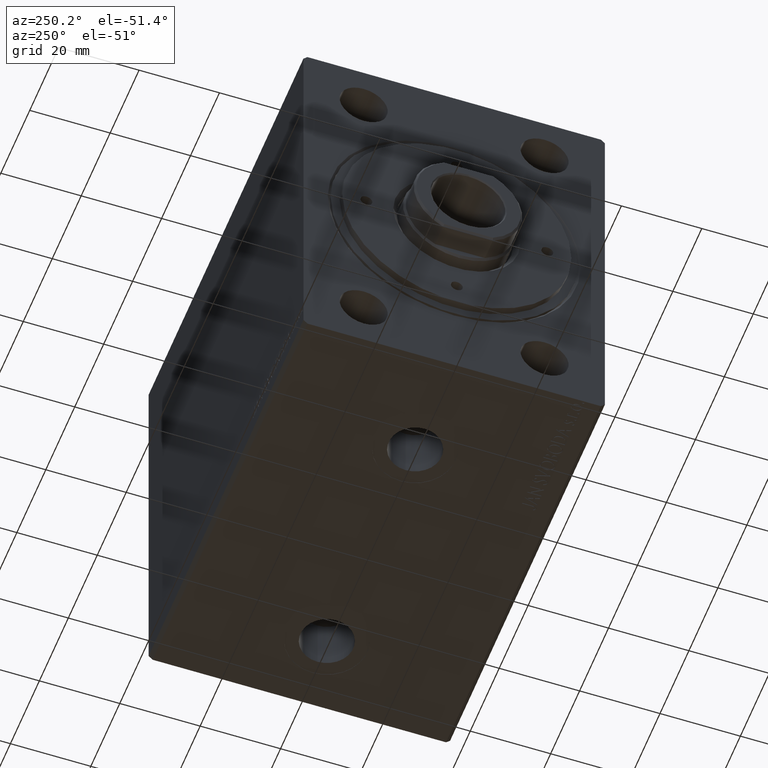
[diagram: clean part render]
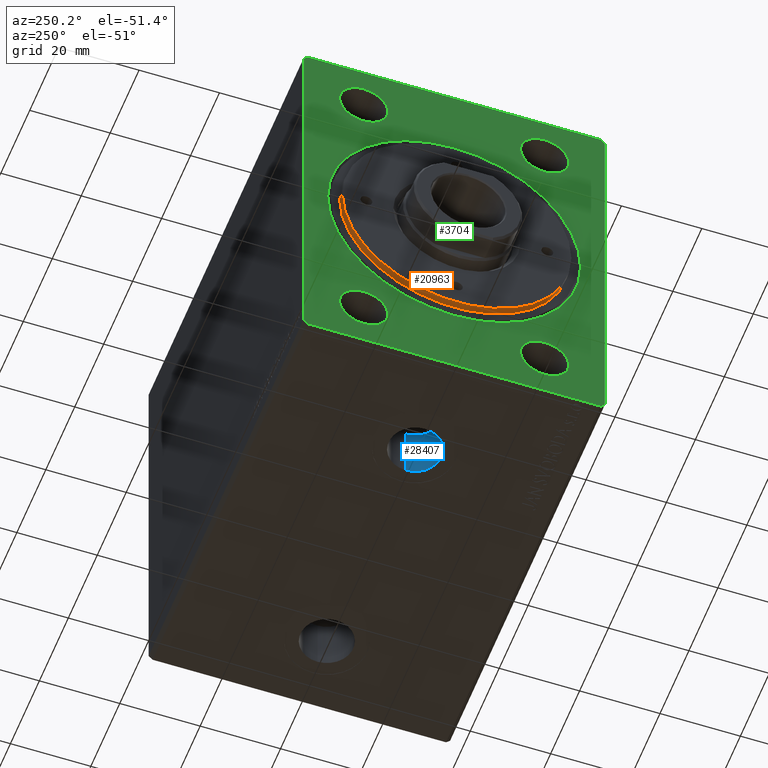
[diagram: same view with three faces highlighted in distinct colors, each labeled with its STEP entity id]
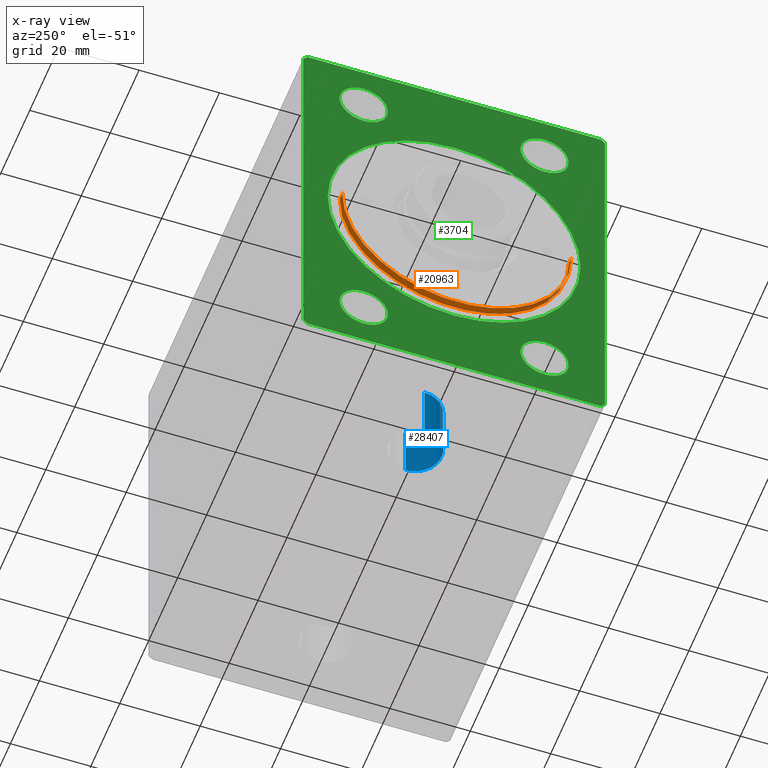
[diagram: x-ray of the same camera — body ghosted, the three highlighted faces saturated]
A machine part, auxiliary view with three faces highlighted in distinct colors.
The next image is the same camera in x-ray (body ghosted, the three faces saturated) — at least one of them is partly hidden behind the body in this view.
Their STEP definitions:

[orange] entity #20963 — the highlighted cylindrical surface (partial cylindrical patch) has radius 28.5 mm, axis along (1, -0, 0).
#275 = CARTESIAN_POINT ( 'NONE',  ( 0.000000000000000000, 0.000000000000000000, 9.999999999999998224 ) ) ;
#403 = CARTESIAN_POINT ( 'NONE',  ( 28.50000000000000000, 3.490243377569956456E-15, 9.999999999999998224 ) ) ;
#490 = DIRECTION ( 'NONE',  ( 0.000000000000000000, 0.000000000000000000, 1.000000000000000000 ) ) ;
#707 = DIRECTION ( 'NONE',  ( 1.000000000000000000, 0.000000000000000000, 0.000000000000000000 ) ) ;
#1456 = ORIENTED_EDGE ( 'NONE', *, *, #39671, .T. ) ;
#1645 = CARTESIAN_POINT ( 'NONE',  ( -28.50000000000000000, 0.000000000000000000, 9.999999999999998224 ) ) ;
#1966 = CARTESIAN_POINT ( 'NONE',  ( 28.50000000000000000, 3.490243377569956456E-15, 8.199999999999999289 ) ) ;
#2687 = ORIENTED_EDGE ( 'NONE', *, *, #35622, .T. ) ;
#3092 = DIRECTION ( 'NONE',  ( -0.000000000000000000, -0.000000000000000000, -1.000000000000000000 ) ) ;
#3191 = CYLINDRICAL_SURFACE ( 'NONE', #28327, 28.50000000000000000 ) ;
#6559 = VERTEX_POINT ( 'NONE', #1966 ) ;
#7180 = DIRECTION ( 'NONE',  ( -1.000000000000000000, 0.000000000000000000, 0.000000000000000000 ) ) ;
#10311 = CARTESIAN_POINT ( 'NONE',  ( -28.50000000000000000, 0.000000000000000000, 8.199999999999999289 ) ) ;
#11646 = CARTESIAN_POINT ( 'NONE',  ( 0.000000000000000000, 0.000000000000000000, 8.199999999999999289 ) ) ;
#14764 = DIRECTION ( 'NONE',  ( 0.000000000000000000, 0.000000000000000000, 1.000000000000000000 ) ) ;
#15210 = DIRECTION ( 'NONE',  ( 1.000000000000000000, 0.000000000000000000, 0.000000000000000000 ) ) ;
#16148 = ORIENTED_EDGE ( 'NONE', *, *, #20643, .F. ) ;
#18469 = ORIENTED_EDGE ( 'NONE', *, *, #19424, .F. ) ;
#18518 = VERTEX_POINT ( 'NONE', #32043 ) ;
#19424 = EDGE_CURVE ( 'NONE', #18518, #28281, #40401, .T. ) ;
#20099 = FACE_OUTER_BOUND ( 'NONE', #21588, .T. ) ;
#20643 = EDGE_CURVE ( 'NONE', #28281, #38068, #42347, .T. ) ;
#20963 = ADVANCED_FACE ( 'NONE', ( #20099 ), #3191, .T. ) ;
#21519 = AXIS2_PLACEMENT_3D ( 'NONE', #11646, #14764, #15210 ) ;
#21588 = EDGE_LOOP ( 'NONE', ( #18469, #2687, #1456, #16148 ) ) ;
#24273 = VECTOR ( 'NONE', #3092, 1000.000000000000000 ) ;
#26767 = DIRECTION ( 'NONE',  ( -0.000000000000000000, -0.000000000000000000, -1.000000000000000000 ) ) ;
#28281 = VERTEX_POINT ( 'NONE', #28980 ) ;
#28327 = AXIS2_PLACEMENT_3D ( 'NONE', #43668, #26767, #7180 ) ;
#28347 = DIRECTION ( 'NONE',  ( -0.000000000000000000, -0.000000000000000000, -1.000000000000000000 ) ) ;
#28980 = CARTESIAN_POINT ( 'NONE',  ( -28.50000000000000000, 0.000000000000000000, 9.999999999999998224 ) ) ;
#30886 = LINE ( 'NONE', #403, #24273 ) ;
#32043 = CARTESIAN_POINT ( 'NONE',  ( 28.50000000000000000, 3.490243377569956456E-15, 9.999999999999998224 ) ) ;
#34008 = VECTOR ( 'NONE', #28347, 1000.000000000000000 ) ;
#35622 = EDGE_CURVE ( 'NONE', #18518, #6559, #30886, .T. ) ;
#37145 = CIRCLE ( 'NONE', #21519, 28.50000000000000000 ) ;
#38068 = VERTEX_POINT ( 'NONE', #10311 ) ;
#38269 = AXIS2_PLACEMENT_3D ( 'NONE', #275, #490, #707 ) ;
#39671 = EDGE_CURVE ( 'NONE', #6559, #38068, #37145, .T. ) ;
#40401 = CIRCLE ( 'NONE', #38269, 28.50000000000000000 ) ;
#42347 = LINE ( 'NONE', #1645, #34008 ) ;
#43668 = CARTESIAN_POINT ( 'NONE',  ( 0.000000000000000000, 0.000000000000000000, 9.999999999999998224 ) ) ;

[blue] entity #28407 — the highlighted cylindrical surface (edge-blend (fillet) strip) has radius 6.58 mm, axis along (-0, -0, -1).
#520 = VERTEX_POINT ( 'NONE', #32155 ) ;
#1358 = VERTEX_POINT ( 'NONE', #14397 ) ;
#1629 = CARTESIAN_POINT ( 'NONE',  ( 20.41999999999999815, -6.135200823405162107E-15, -36.29999999999999716 ) ) ;
#5237 = ORIENTED_EDGE ( 'NONE', *, *, #22690, .F. ) ;
#6823 = CARTESIAN_POINT ( 'NONE',  ( 27.00000000000000000, -6.135200823405162107E-15, -36.29999999999999716 ) ) ;
#9874 = ORIENTED_EDGE ( 'NONE', *, *, #18363, .T. ) ;
#11758 = CARTESIAN_POINT ( 'NONE',  ( 20.41999999999999815, -6.135200823405162107E-15, -36.29999999999999716 ) ) ;
#14368 = EDGE_CURVE ( 'NONE', #1358, #18300, #15514, .T. ) ;
#14397 = CARTESIAN_POINT ( 'NONE',  ( 33.57999999999999829, -5.329383229566203065E-15, -36.29999999999999716 ) ) ;
#14885 = LINE ( 'NONE', #11758, #38332 ) ;
#15514 = CIRCLE ( 'NONE', #28298, 6.580000000000002736 ) ;
#18300 = VERTEX_POINT ( 'NONE', #1629 ) ;
#18363 = EDGE_CURVE ( 'NONE', #1358, #42267, #23414, .T. ) ;
#20292 = CARTESIAN_POINT ( 'NONE',  ( 27.00000000000000000, -6.135200823405162107E-15, -36.29999999999999716 ) ) ;
#20737 = ORIENTED_EDGE ( 'NONE', *, *, #14368, .F. ) ;
#21454 = ORIENTED_EDGE ( 'NONE', *, *, #34087, .T. ) ;
#22690 = EDGE_CURVE ( 'NONE', #18300, #520, #14885, .T. ) ;
#23267 = DIRECTION ( 'NONE',  ( 0.000000000000000000, 0.000000000000000000, -1.000000000000000000 ) ) ;
#23414 = LINE ( 'NONE', #26103, #41882 ) ;
#23950 = DIRECTION ( 'NONE',  ( -1.000000000000000000, 0.000000000000000000, 0.000000000000000000 ) ) ;
#26103 = CARTESIAN_POINT ( 'NONE',  ( 33.57999999999999829, -5.329383229566203065E-15, -36.29999999999999716 ) ) ;
#26859 = EDGE_LOOP ( 'NONE', ( #20737, #9874, #21454, #5237 ) ) ;
#28298 = AXIS2_PLACEMENT_3D ( 'NONE', #6823, #30409, #23950 ) ;
#28407 = ADVANCED_FACE ( 'NONE', ( #36751 ), #30521, .F. ) ;
#29872 = DIRECTION ( 'NONE',  ( -0.000000000000000000, -0.000000000000000000, -1.000000000000000000 ) ) ;
#30409 = DIRECTION ( 'NONE',  ( 0.000000000000000000, 0.000000000000000000, -1.000000000000000000 ) ) ;
#30521 = CYLINDRICAL_SURFACE ( 'NONE', #33248, 6.580000000000002736 ) ;
#32155 = CARTESIAN_POINT ( 'NONE',  ( 20.41999999999999815, -6.135200823405162107E-15, -49.89999999999999858 ) ) ;
#33248 = AXIS2_PLACEMENT_3D ( 'NONE', #20292, #43426, #37414 ) ;
#33497 = DIRECTION ( 'NONE',  ( -0.000000000000000000, -0.000000000000000000, -1.000000000000000000 ) ) ;
#34087 = EDGE_CURVE ( 'NONE', #42267, #520, #42696, .T. ) ;
#36751 = FACE_OUTER_BOUND ( 'NONE', #26859, .T. ) ;
#37016 = AXIS2_PLACEMENT_3D ( 'NONE', #37282, #23267, #40175 ) ;
#37282 = CARTESIAN_POINT ( 'NONE',  ( 27.00000000000000000, -6.135200823405162107E-15, -49.89999999999999858 ) ) ;
#37414 = DIRECTION ( 'NONE',  ( -1.000000000000000000, 0.000000000000000000, 0.000000000000000000 ) ) ;
#38332 = VECTOR ( 'NONE', #33497, 1000.000000000000000 ) ;
#38802 = CARTESIAN_POINT ( 'NONE',  ( 33.57999999999999829, -5.329383229566203065E-15, -49.89999999999999858 ) ) ;
#40175 = DIRECTION ( 'NONE',  ( -1.000000000000000000, 0.000000000000000000, 0.000000000000000000 ) ) ;
#41882 = VECTOR ( 'NONE', #29872, 1000.000000000000000 ) ;
#42267 = VERTEX_POINT ( 'NONE', #38802 ) ;
#42696 = CIRCLE ( 'NONE', #37016, 6.580000000000002736 ) ;
#43426 = DIRECTION ( 'NONE',  ( -0.000000000000000000, -0.000000000000000000, -1.000000000000000000 ) ) ;

[green] entity #3704 — the highlighted planar face has unit normal (1, 0, 0).
#187 = CARTESIAN_POINT ( 'NONE',  ( 0.000000000000000000, 3.851514183318427194E-15, -31.45000000000002061 ) ) ;
#571 = CIRCLE ( 'NONE', #33954, 5.999999999999998224 ) ;
#730 = CARTESIAN_POINT ( 'NONE',  ( 0.000000000000000000, -36.50000000000000711, -50.00000000000000000 ) ) ;
#749 = ORIENTED_EDGE ( 'NONE', *, *, #5387, .F. ) ;
#796 = VERTEX_POINT ( 'NONE', #17458 ) ;
#1673 = CARTESIAN_POINT ( 'NONE',  ( 0.000000000000000000, 37.50000000000000711, -49.00000000000000000 ) ) ;
#1890 = DIRECTION ( 'NONE',  ( 1.000000000000000000, 0.000000000000000000, 0.000000000000000000 ) ) ;
#2016 = CARTESIAN_POINT ( 'NONE',  ( 2.449293598294703949E-16, 22.50000000000000000, -38.00000000000000000 ) ) ;
#2638 = CARTESIAN_POINT ( 'NONE',  ( 0.000000000000000000, 36.50000000000000711, 50.00000000000000000 ) ) ;
#2800 = VECTOR ( 'NONE', #42451, 1000.000000000000000 ) ;
#3328 = VERTEX_POINT ( 'NONE', #3701 ) ;
#3519 = EDGE_CURVE ( 'NONE', #35717, #796, #9412, .T. ) ;
#3701 = CARTESIAN_POINT ( 'NONE',  ( 2.449293598294703949E-16, 22.50000000000000000, 44.00000000000000000 ) ) ;
#3704 = ADVANCED_FACE ( 'NONE', ( #31000, #28101, #21644, #41232, #38768, #35204 ), #4732, .F. ) ;
#3779 = EDGE_LOOP ( 'NONE', ( #17287, #31609, #32094, #11972, #13396, #11692, #36434, #11871 ) ) ;
#4586 = EDGE_LOOP ( 'NONE', ( #27846, #749 ) ) ;
#4732 = PLANE ( 'NONE',  #16770 ) ;
#5053 = EDGE_CURVE ( 'NONE', #32366, #21337, #32141, .T. ) ;
#5132 = DIRECTION ( 'NONE',  ( 0.000000000000000000, 0.000000000000000000, 1.000000000000000000 ) ) ;
#5258 = DIRECTION ( 'NONE',  ( 0.000000000000000000, 0.000000000000000000, 1.000000000000000000 ) ) ;
#5285 = VERTEX_POINT ( 'NONE', #30793 ) ;
#5349 = LINE ( 'NONE', #42723, #40362 ) ;
#5373 = AXIS2_PLACEMENT_3D ( 'NONE', #2016, #35607, #5132 ) ;
#5387 = EDGE_CURVE ( 'NONE', #31485, #3328, #23066, .T. ) ;
#5462 = CARTESIAN_POINT ( 'NONE',  ( 0.000000000000000000, -37.50000000000001421, 48.99999999999998579 ) ) ;
#5768 = CARTESIAN_POINT ( 'NONE',  ( 2.449293598294703949E-16, -22.50000000000000000, 38.00000000000000000 ) ) ;
#6010 = VECTOR ( 'NONE', #42376, 1000.000000000000000 ) ;
#6155 = CIRCLE ( 'NONE', #39577, 5.999999999999998224 ) ;
#6459 = ORIENTED_EDGE ( 'NONE', *, *, #3519, .T. ) ;
#6549 = CARTESIAN_POINT ( 'NONE',  ( 2.449293598294703949E-16, 22.50000000000000000, 38.00000000000000000 ) ) ;
#6652 = CARTESIAN_POINT ( 'NONE',  ( 0.000000000000000000, -36.50000000000001421, 49.99999999999998579 ) ) ;
#7162 = LINE ( 'NONE', #16758, #7309 ) ;
#7308 = VERTEX_POINT ( 'NONE', #39435 ) ;
#7309 = VECTOR ( 'NONE', #30092, 1000.000000000000114 ) ;
#7847 = CARTESIAN_POINT ( 'NONE',  ( 0.000000000000000000, 0.000000000000000000, 0.000000000000000000 ) ) ;
#9109 = EDGE_CURVE ( 'NONE', #32105, #24224, #39723, .T. ) ;
#9358 = EDGE_CURVE ( 'NONE', #32766, #43772, #12499, .T. ) ;
#9412 = CIRCLE ( 'NONE', #40650, 31.45000000000002061 ) ;
#9557 = LINE ( 'NONE', #6652, #16946 ) ;
#9764 = EDGE_CURVE ( 'NONE', #13279, #22965, #23190, .T. ) ;
#9819 = CARTESIAN_POINT ( 'NONE',  ( 2.449293598294703949E-16, 22.50000000000000000, -44.00000000000000000 ) ) ;
#9884 = DIRECTION ( 'NONE',  ( 0.000000000000000000, 0.000000000000000000, 1.000000000000000000 ) ) ;
#10327 = ORIENTED_EDGE ( 'NONE', *, *, #24652, .F. ) ;
#11016 = CARTESIAN_POINT ( 'NONE',  ( 0.000000000000000000, -37.50000000000001421, -49.00000000000000000 ) ) ;
#11637 = DIRECTION ( 'NONE',  ( -1.000000000000000000, -0.000000000000000000, -0.000000000000000000 ) ) ;
#11692 = ORIENTED_EDGE ( 'NONE', *, *, #9109, .F. ) ;
#11871 = ORIENTED_EDGE ( 'NONE', *, *, #22634, .F. ) ;
#11891 = CARTESIAN_POINT ( 'NONE',  ( 2.449293598294703949E-16, -22.50000000000000000, 38.00000000000000000 ) ) ;
#11972 = ORIENTED_EDGE ( 'NONE', *, *, #27586, .F. ) ;
#12254 = DIRECTION ( 'NONE',  ( 0.000000000000000000, 0.7071067811865474617, 0.7071067811865474617 ) ) ;
#12499 = CIRCLE ( 'NONE', #5373, 5.999999999999998224 ) ;
#12900 = DIRECTION ( 'NONE',  ( 0.000000000000000000, -0.7071067811865474617, -0.7071067811865474617 ) ) ;
#13279 = VERTEX_POINT ( 'NONE', #18799 ) ;
#13396 = ORIENTED_EDGE ( 'NONE', *, *, #39903, .F. ) ;
#13418 = ORIENTED_EDGE ( 'NONE', *, *, #43206, .F. ) ;
#14198 = DIRECTION ( 'NONE',  ( 0.000000000000000000, 0.000000000000000000, -1.000000000000000000 ) ) ;
#14533 = DIRECTION ( 'NONE',  ( 0.000000000000000000, 0.000000000000000000, -1.000000000000000000 ) ) ;
#14558 = EDGE_CURVE ( 'NONE', #37470, #32105, #9557, .T. ) ;
#14910 = EDGE_CURVE ( 'NONE', #3328, #31485, #571, .T. ) ;
#15223 = CARTESIAN_POINT ( 'NONE',  ( 2.449293598294703949E-16, -22.50000000000000000, -44.00000000000000711 ) ) ;
#15257 = AXIS2_PLACEMENT_3D ( 'NONE', #27898, #11637, #21651 ) ;
#15487 = DIRECTION ( 'NONE',  ( 0.000000000000000000, 0.000000000000000000, -1.000000000000000000 ) ) ;
#15495 = DIRECTION ( 'NONE',  ( -1.000000000000000000, -0.000000000000000000, -0.000000000000000000 ) ) ;
#15728 = CARTESIAN_POINT ( 'NONE',  ( 0.000000000000000000, 37.50000000000000711, 49.00000000000000000 ) ) ;
#15786 = CIRCLE ( 'NONE', #25715, 5.999999999999998224 ) ;
#15978 = EDGE_LOOP ( 'NONE', ( #13418, #10327 ) ) ;
#16758 = CARTESIAN_POINT ( 'NONE',  ( 0.000000000000000000, -37.50000000000001421, -49.00000000000000000 ) ) ;
#16770 = AXIS2_PLACEMENT_3D ( 'NONE', #7847, #20771, #14533 ) ;
#16946 = VECTOR ( 'NONE', #12900, 1000.000000000000114 ) ;
#17164 = DIRECTION ( 'NONE',  ( 0.000000000000000000, 0.000000000000000000, 1.000000000000000000 ) ) ;
#17287 = ORIENTED_EDGE ( 'NONE', *, *, #30186, .F. ) ;
#17458 = CARTESIAN_POINT ( 'NONE',  ( 0.000000000000000000, 0.000000000000000000, 31.45000000000002061 ) ) ;
#17864 = LINE ( 'NONE', #730, #36777 ) ;
#18600 = CARTESIAN_POINT ( 'NONE',  ( 2.449293598294703949E-16, -22.50000000000000000, -38.00000000000000711 ) ) ;
#18798 = CARTESIAN_POINT ( 'NONE',  ( 0.000000000000000000, 0.000000000000000000, 0.000000000000000000 ) ) ;
#18799 = CARTESIAN_POINT ( 'NONE',  ( 2.449293598294703949E-16, -22.50000000000000000, -32.00000000000000711 ) ) ;
#20247 = VERTEX_POINT ( 'NONE', #2638 ) ;
#20605 = VECTOR ( 'NONE', #42953, 1000.000000000000114 ) ;
#20771 = DIRECTION ( 'NONE',  ( 1.000000000000000000, 0.000000000000000000, 0.000000000000000000 ) ) ;
#21337 = VERTEX_POINT ( 'NONE', #15728 ) ;
#21389 = CARTESIAN_POINT ( 'NONE',  ( 2.449293598294703949E-16, -22.50000000000000000, 32.00000000000000000 ) ) ;
#21644 = FACE_BOUND ( 'NONE', #29823, .T. ) ;
#21651 = DIRECTION ( 'NONE',  ( 0.000000000000000000, 0.000000000000000000, 1.000000000000000000 ) ) ;
#22141 = DIRECTION ( 'NONE',  ( 0.000000000000000000, 0.000000000000000000, -1.000000000000000000 ) ) ;
#22634 = EDGE_CURVE ( 'NONE', #20247, #37470, #28230, .T. ) ;
#22965 = VERTEX_POINT ( 'NONE', #15223 ) ;
#23066 = CIRCLE ( 'NONE', #15257, 5.999999999999998224 ) ;
#23190 = CIRCLE ( 'NONE', #25308, 5.999999999999998224 ) ;
#23829 = DIRECTION ( 'NONE',  ( -1.000000000000000000, -0.000000000000000000, -0.000000000000000000 ) ) ;
#24224 = VERTEX_POINT ( 'NONE', #11016 ) ;
#24652 = EDGE_CURVE ( 'NONE', #40003, #5285, #6155, .T. ) ;
#25308 = AXIS2_PLACEMENT_3D ( 'NONE', #18600, #15495, #42170 ) ;
#25708 = CARTESIAN_POINT ( 'NONE',  ( 0.000000000000000000, -37.50000000000001421, 48.99999999999998579 ) ) ;
#25715 = AXIS2_PLACEMENT_3D ( 'NONE', #30440, #44006, #5258 ) ;
#25834 = CARTESIAN_POINT ( 'NONE',  ( 0.000000000000000000, 37.50000000000000711, 49.00000000000000000 ) ) ;
#27586 = EDGE_CURVE ( 'NONE', #28219, #7308, #17864, .T. ) ;
#27846 = ORIENTED_EDGE ( 'NONE', *, *, #14910, .F. ) ;
#27898 = CARTESIAN_POINT ( 'NONE',  ( 2.449293598294703949E-16, 22.50000000000000000, 38.00000000000000000 ) ) ;
#28101 = FACE_BOUND ( 'NONE', #41836, .T. ) ;
#28219 = VERTEX_POINT ( 'NONE', #32761 ) ;
#28230 = LINE ( 'NONE', #34898, #2800 ) ;
#28578 = DIRECTION ( 'NONE',  ( 0.000000000000000000, 0.000000000000000000, 1.000000000000000000 ) ) ;
#29385 = EDGE_CURVE ( 'NONE', #7308, #32366, #5349, .T. ) ;
#29387 = LINE ( 'NONE', #25834, #20605 ) ;
#29823 = EDGE_LOOP ( 'NONE', ( #42051, #36052 ) ) ;
#29847 = AXIS2_PLACEMENT_3D ( 'NONE', #43631, #23829, #17164 ) ;
#30092 = DIRECTION ( 'NONE',  ( 0.000000000000000000, 0.7071067811865500152, -0.7071067811865451302 ) ) ;
#30156 = AXIS2_PLACEMENT_3D ( 'NONE', #11891, #32126, #28578 ) ;
#30186 = EDGE_CURVE ( 'NONE', #21337, #20247, #29387, .T. ) ;
#30440 = CARTESIAN_POINT ( 'NONE',  ( 2.449293598294703949E-16, 22.50000000000000000, -38.00000000000000000 ) ) ;
#30793 = CARTESIAN_POINT ( 'NONE',  ( 2.449293598294703949E-16, -22.50000000000000000, 44.00000000000000000 ) ) ;
#30825 = EDGE_CURVE ( 'NONE', #22965, #13279, #41171, .T. ) ;
#30993 = DIRECTION ( 'NONE',  ( 0.000000000000000000, 1.000000000000000000, 0.000000000000000000 ) ) ;
#31000 = FACE_BOUND ( 'NONE', #4586, .T. ) ;
#31005 = DIRECTION ( 'NONE',  ( -1.000000000000000000, -0.000000000000000000, -0.000000000000000000 ) ) ;
#31120 = EDGE_CURVE ( 'NONE', #796, #35717, #37660, .T. ) ;
#31485 = VERTEX_POINT ( 'NONE', #32362 ) ;
#31609 = ORIENTED_EDGE ( 'NONE', *, *, #5053, .F. ) ;
#32094 = ORIENTED_EDGE ( 'NONE', *, *, #29385, .F. ) ;
#32105 = VERTEX_POINT ( 'NONE', #25708 ) ;
#32126 = DIRECTION ( 'NONE',  ( -1.000000000000000000, -0.000000000000000000, -0.000000000000000000 ) ) ;
#32141 = LINE ( 'NONE', #1673, #6010 ) ;
#32264 = EDGE_LOOP ( 'NONE', ( #42113, #6459 ) ) ;
#32362 = CARTESIAN_POINT ( 'NONE',  ( 2.449293598294703949E-16, 22.50000000000000000, 32.00000000000000000 ) ) ;
#32366 = VERTEX_POINT ( 'NONE', #42329 ) ;
#32761 = CARTESIAN_POINT ( 'NONE',  ( 0.000000000000000000, -36.50000000000000711, -50.00000000000000000 ) ) ;
#32766 = VERTEX_POINT ( 'NONE', #37749 ) ;
#32977 = CIRCLE ( 'NONE', #30156, 5.999999999999998224 ) ;
#33093 = ORIENTED_EDGE ( 'NONE', *, *, #30825, .F. ) ;
#33564 = DIRECTION ( 'NONE',  ( 0.000000000000000000, 0.000000000000000000, 1.000000000000000000 ) ) ;
#33954 = AXIS2_PLACEMENT_3D ( 'NONE', #6549, #31005, #9884 ) ;
#34221 = CARTESIAN_POINT ( 'NONE',  ( 0.000000000000000000, 0.000000000000000000, 0.000000000000000000 ) ) ;
#34872 = DIRECTION ( 'NONE',  ( 1.000000000000000000, 0.000000000000000000, 0.000000000000000000 ) ) ;
#34898 = CARTESIAN_POINT ( 'NONE',  ( 0.000000000000000000, 36.50000000000000711, 50.00000000000000000 ) ) ;
#35204 = FACE_OUTER_BOUND ( 'NONE', #3779, .T. ) ;
#35479 = AXIS2_PLACEMENT_3D ( 'NONE', #34221, #34872, #14198 ) ;
#35607 = DIRECTION ( 'NONE',  ( -1.000000000000000000, -0.000000000000000000, -0.000000000000000000 ) ) ;
#35717 = VERTEX_POINT ( 'NONE', #187 ) ;
#36052 = ORIENTED_EDGE ( 'NONE', *, *, #37409, .F. ) ;
#36434 = ORIENTED_EDGE ( 'NONE', *, *, #14558, .F. ) ;
#36777 = VECTOR ( 'NONE', #30993, 1000.000000000000000 ) ;
#37409 = EDGE_CURVE ( 'NONE', #43772, #32766, #15786, .T. ) ;
#37470 = VERTEX_POINT ( 'NONE', #42404 ) ;
#37660 = CIRCLE ( 'NONE', #35479, 31.45000000000002061 ) ;
#37749 = CARTESIAN_POINT ( 'NONE',  ( 2.449293598294703949E-16, 22.50000000000000000, -32.00000000000000000 ) ) ;
#38768 = FACE_BOUND ( 'NONE', #32264, .T. ) ;
#39435 = CARTESIAN_POINT ( 'NONE',  ( 0.000000000000000000, 36.50000000000000711, -50.00000000000000000 ) ) ;
#39577 = AXIS2_PLACEMENT_3D ( 'NONE', #5768, #43352, #33564 ) ;
#39723 = LINE ( 'NONE', #5462, #40212 ) ;
#39903 = EDGE_CURVE ( 'NONE', #24224, #28219, #7162, .T. ) ;
#40003 = VERTEX_POINT ( 'NONE', #21389 ) ;
#40212 = VECTOR ( 'NONE', #15487, 1000.000000000000000 ) ;
#40362 = VECTOR ( 'NONE', #12254, 1000.000000000000114 ) ;
#40428 = ORIENTED_EDGE ( 'NONE', *, *, #9764, .F. ) ;
#40650 = AXIS2_PLACEMENT_3D ( 'NONE', #18798, #1890, #22141 ) ;
#41171 = CIRCLE ( 'NONE', #29847, 5.999999999999998224 ) ;
#41232 = FACE_BOUND ( 'NONE', #15978, .T. ) ;
#41836 = EDGE_LOOP ( 'NONE', ( #40428, #33093 ) ) ;
#42051 = ORIENTED_EDGE ( 'NONE', *, *, #9358, .F. ) ;
#42113 = ORIENTED_EDGE ( 'NONE', *, *, #31120, .T. ) ;
#42170 = DIRECTION ( 'NONE',  ( 0.000000000000000000, 0.000000000000000000, 1.000000000000000000 ) ) ;
#42329 = CARTESIAN_POINT ( 'NONE',  ( 0.000000000000000000, 37.50000000000000711, -49.00000000000000000 ) ) ;
#42376 = DIRECTION ( 'NONE',  ( 0.000000000000000000, 0.000000000000000000, 1.000000000000000000 ) ) ;
#42404 = CARTESIAN_POINT ( 'NONE',  ( 0.000000000000000000, -36.50000000000001421, 49.99999999999998579 ) ) ;
#42451 = DIRECTION ( 'NONE',  ( 0.000000000000000000, -1.000000000000000000, -1.901066822988281457E-16 ) ) ;
#42723 = CARTESIAN_POINT ( 'NONE',  ( 0.000000000000000000, 36.50000000000000711, -50.00000000000000000 ) ) ;
#42953 = DIRECTION ( 'NONE',  ( 0.000000000000000000, -0.7071067811865474617, 0.7071067811865474617 ) ) ;
#43206 = EDGE_CURVE ( 'NONE', #5285, #40003, #32977, .T. ) ;
#43352 = DIRECTION ( 'NONE',  ( -1.000000000000000000, -0.000000000000000000, -0.000000000000000000 ) ) ;
#43631 = CARTESIAN_POINT ( 'NONE',  ( 2.449293598294703949E-16, -22.50000000000000000, -38.00000000000000711 ) ) ;
#43772 = VERTEX_POINT ( 'NONE', #9819 ) ;
#44006 = DIRECTION ( 'NONE',  ( -1.000000000000000000, -0.000000000000000000, -0.000000000000000000 ) ) ;